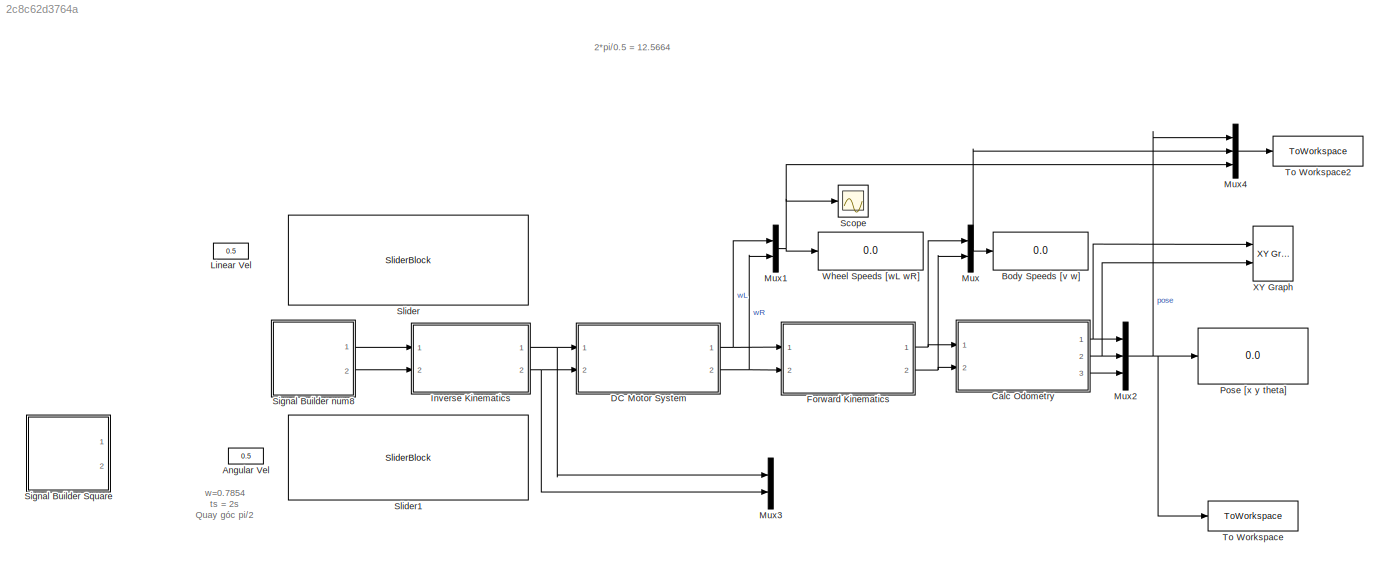
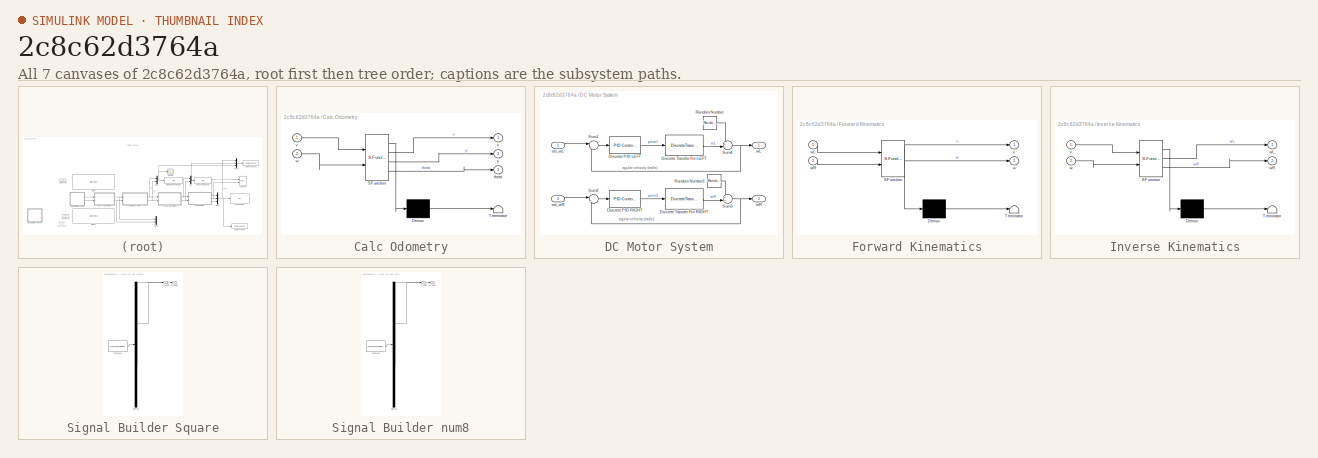
[diagram: thumbnail index - all 7 canvases of the model, root first then tree order]
MODEL slx_2c8c62d3764a
KIND model
CONFIG AbsTol = auto
CONFIG EnableMultiTasking = off
CONFIG FixedStep = 0.005
CONFIG InitFcn = addpath(genpath('<path>'))
CONFIG MaxStep = auto
CONFIG MinStep = auto
CONFIG RelTol = 1e-3
CONFIG SampleTimeConstraint = Unconstrained
CONFIG Solver = FixedStepDiscrete
CONFIG SolverName = FixedStepDiscrete
CONFIG StartTime = 0.0
CONFIG StopTime = 28
BLOCK [Constant] Angular Vel
  Value = 0.5
BLOCK [Display] Body Speeds [v w]
  Decimation = 1
  Ports = [1]
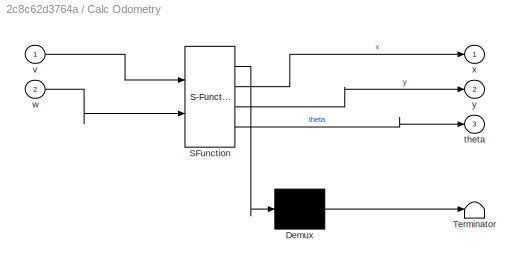
BLOCK [SubSystem] Calc Odometry
  ErrorFcn = Stateflow.Translate.translate
  PermitHierarchicalResolution = ExplicitOnly
  Ports = [2, 3]
  RequestExecContextInheritance = off
  SFBlockType = MATLAB Function
  TreatAsAtomicUnit = on
BLOCK [Demux] Calc Odometry/ Demux 
  Outputs = 1
  Ports = [1, 1]
BLOCK [S-Function] Calc Odometry/ SFunction 
  EnableBusSupport = on
  FunctionName = sf_sfun
  PortCounts = [2 4]
  Ports = [2, 4]
  SFcnIsStateOwnerBlock = off
  SFunctionDeploymentMode = off
  Tag = Stateflow S-Function 3
BLOCK [Terminator] Calc Odometry/ Terminator 
BLOCK [Outport] Calc Odometry/theta
  Port = 3
BLOCK [Inport] Calc Odometry/v
BLOCK [Inport] Calc Odometry/w
  Port = 2
BLOCK [Outport] Calc Odometry/x
BLOCK [Outport] Calc Odometry/y
  Port = 2
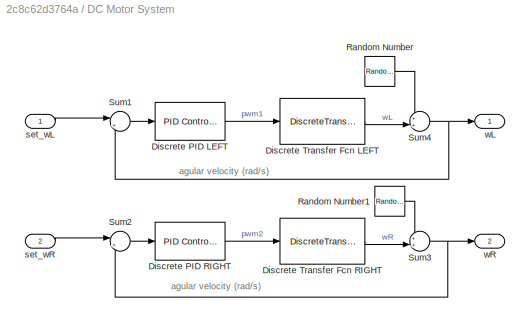
BLOCK [SubSystem] DC Motor System
  Ports = [2, 2]
  RequestExecContextInheritance = off
BLOCK [Reference] DC Motor System/Discrete PID LEFT  REF=simulink/Continuous/PID Controller
  Ports = [1, 1]
  SourceBlock = simulink/Continuous/PID Controller
  SourceProductBaseCode = SL
  SourceType = PID 1dof
BLOCK [Reference] DC Motor System/Discrete PID RIGHT  REF=simulink/Continuous/PID Controller
  Ports = [1, 1]
  SourceBlock = simulink/Continuous/PID Controller
  SourceProductBaseCode = SL
  SourceType = PID 1dof
BLOCK [DiscreteTransferFcn] DC Motor System/Discrete Transfer Fcn LEFT
  Denominator = [1 -0.8037]
  InputPortMap = u0
  Numerator = 0.005571
  Ports = [1, 1]
BLOCK [DiscreteTransferFcn] DC Motor System/Discrete Transfer Fcn RIGHT
  Denominator = [1 -0.7937]
  InputPortMap = u0
  Numerator = [0.007311]
  Ports = [1, 1]
BLOCK [RandomNumber] DC Motor System/Random Number
  Variance = 0.020583
BLOCK [RandomNumber] DC Motor System/Random Number1
  Variance = 0.0847669
BLOCK [Sum] DC Motor System/Sum1
  Inputs = |+-
  Ports = [2, 1]
BLOCK [Sum] DC Motor System/Sum2
  Inputs = |+-
  Ports = [2, 1]
BLOCK [Sum] DC Motor System/Sum3
  Inputs = ++|
  Ports = [2, 1]
BLOCK [Sum] DC Motor System/Sum4
  Inputs = ++|
  Ports = [2, 1]
BLOCK [Inport] DC Motor System/set_wL
BLOCK [Inport] DC Motor System/set_wR
  Port = 2
BLOCK [Outport] DC Motor System/wL
BLOCK [Outport] DC Motor System/wR
  Port = 2
BLOCK [SubSystem] Forward Kinematics
  ErrorFcn = Stateflow.Translate.translate
  PermitHierarchicalResolution = ExplicitOnly
  Ports = [2, 2]
  RequestExecContextInheritance = off
  SFBlockType = MATLAB Function
  TreatAsAtomicUnit = on
BLOCK [Demux] Forward Kinematics/ Demux 
  Outputs = 1
  Ports = [1, 1]
BLOCK [S-Function] Forward Kinematics/ SFunction 
  EnableBusSupport = on
  FunctionName = sf_sfun
  PortCounts = [2 3]
  Ports = [2, 3]
  SFcnIsStateOwnerBlock = off
  SFunctionDeploymentMode = off
  Tag = Stateflow S-Function 1
BLOCK [Terminator] Forward Kinematics/ Terminator 
BLOCK [Outport] Forward Kinematics/v
BLOCK [Outport] Forward Kinematics/w
  Port = 2
BLOCK [Inport] Forward Kinematics/wL
BLOCK [Inport] Forward Kinematics/wR
  Port = 2
BLOCK [SubSystem] Inverse Kinematics
  ErrorFcn = Stateflow.Translate.translate
  PermitHierarchicalResolution = ExplicitOnly
  Ports = [2, 2]
  RequestExecContextInheritance = off
  SFBlockType = MATLAB Function
  TreatAsAtomicUnit = on
BLOCK [Demux] Inverse Kinematics/ Demux 
  Outputs = 1
  Ports = [1, 1]
BLOCK [S-Function] Inverse Kinematics/ SFunction 
  EnableBusSupport = on
  FunctionName = sf_sfun
  PortCounts = [2 3]
  Ports = [2, 3]
  SFcnIsStateOwnerBlock = off
  SFunctionDeploymentMode = off
  Tag = Stateflow S-Function 2
BLOCK [Terminator] Inverse Kinematics/ Terminator 
BLOCK [Inport] Inverse Kinematics/v
BLOCK [Inport] Inverse Kinematics/w
  Port = 2
BLOCK [Outport] Inverse Kinematics/wL
BLOCK [Outport] Inverse Kinematics/wR
  Port = 2
BLOCK [Constant] Linear Vel
  Value = 0.5
BLOCK [Mux] Mux
  DisplayOption = bar
  Inputs = 2
  Ports = [2, 1]
BLOCK [Mux] Mux1
  DisplayOption = bar
  Inputs = 2
  Ports = [2, 1]
BLOCK [Mux] Mux2
  DisplayOption = bar
  Inputs = 3
  Ports = [3, 1]
BLOCK [Mux] Mux3
  DisplayOption = bar
  Inputs = 2
  Ports = [2, 1]
BLOCK [Mux] Mux4
  DisplayOption = bar
  Inputs = 3
  Ports = [3, 1]
BLOCK [Display] Pose [x y theta]
  Decimation = 1
  Ports = [1]
BLOCK [Scope] Scope
  Floating = off
  NumInputPorts = 1
  Ports = [1]
  ScopeSpecificationString = Simulink.scopes.TimeScopeBlockCfg('CurrentConfiguration', extmgr.ConfigurationSet(extmgr.Configuration('Core','General UI',true,'FigureColor',[1 1 1]),extmgr.Configuration('Core','Source UI',true),extmgr.Configuration('Sources','WiredSimulink',true),extmgr.Configuration('Visuals','Time Domain',true,'SerializedDisplays',{struct('MinYLimReal','-1.13442','MaxYLimReal','11.88112','YLabelReal','','MinY...<+1588ch>
BLOCK [SubSystem] Signal Builder Square
  ClipboardFcn = sigbuilder_block('clipboard');
  CloseFcn = sigbuilder_block('close');
  ContinueFcn = sigbuilder_block('continue');
  CopyFcn = sigbuilder_block('copy');
  DeleteFcn = sigbuilder_block('delete');
  LoadFcn = sigbuilder_block('load');
  MaskHideContents = on
  ModelCloseFcn = sigbuilder_block('modelClose');
  NameChangeFcn = sigbuilder_block('namechange');
  OpenFcn = sigbuilder_block('open',[228.75 198 550.5 359.25 ]);
  PauseFcn = sigbuilder_block('pause');
  Ports = [0, 2]
  PreSaveFcn = sigbuilder_block('preSave');
  RequestExecContextInheritance = off
  StartFcn = sigbuilder_block('start');
  StopFcn = sigbuilder_block('stop');
  Tag = STV Subsys
BLOCK [Demux] Signal Builder Square/Demux
  DisplayOption = none
  Outputs = 2
  Ports = [1, 2]
  Tag = STV Demux
BLOCK [FromWorkspace] Signal Builder Square/FromWs
  Tag = STV FromWs
  VariableName = tuvar
BLOCK [Outport] Signal Builder Square/v_robot
  Tag = STV Outport
BLOCK [Outport] Signal Builder Square/w_robot
  Port = 2
  Tag = STV Outport
BLOCK [SubSystem] Signal Builder num8
  ClipboardFcn = sigbuilder_block('clipboard');
  CloseFcn = sigbuilder_block('close');
  ContinueFcn = sigbuilder_block('continue');
  CopyFcn = sigbuilder_block('copy');
  DeleteFcn = sigbuilder_block('delete');
  LoadFcn = sigbuilder_block('load');
  MaskHideContents = on
  ModelCloseFcn = sigbuilder_block('modelClose');
  NameChangeFcn = sigbuilder_block('namechange');
  OpenFcn = sigbuilder_block('open',[196.5 212.25 771.75 357.75 ]);
  PauseFcn = sigbuilder_block('pause');
  Ports = [0, 2]
  PreSaveFcn = sigbuilder_block('preSave');
  RequestExecContextInheritance = off
  StartFcn = sigbuilder_block('start');
  StopFcn = sigbuilder_block('stop');
  Tag = STV Subsys
BLOCK [Demux] Signal Builder num8/Demux
  DisplayOption = none
  Outputs = 2
  Ports = [1, 2]
  Tag = STV Demux
BLOCK [FromWorkspace] Signal Builder num8/FromWs
  Tag = STV FromWs
  VariableName = tuvar
BLOCK [Outport] Signal Builder num8/v_robot
  Tag = STV Outport
BLOCK [Outport] Signal Builder num8/w_robot
  Port = 2
  Tag = STV Outport
BLOCK [SliderBlock] Slider
  ScaleMax = 1
  ScaleMin = -1
  TickInterval = 0.25
BLOCK [SliderBlock] Slider1
  ScaleMax = 1.5
  ScaleMin = -1.5
BLOCK [ToWorkspace] To Workspace
  FixptAsFi = on
  MaxDataPoints = inf
  Ports = [1]
  SampleTime = -1
  SaveFormat = Timeseries
  VariableName = simout
BLOCK [ToWorkspace] To Workspace2
  FixptAsFi = on
  MaxDataPoints = inf
  Ports = [1]
  SampleTime = -1
  SaveFormat = Timeseries
  VariableName = simout2
BLOCK [Display] Wheel Speeds [wL wR]
  Decimation = 1
  Ports = [1]
BLOCK [Reference] XY Graph  REF=simulink/Sinks/XY Graph
  Ports = [2]
  SourceBlock = simulink/Sinks/XY Graph
  SourceProductBaseCode = SL
  SourceType = XY scope.
ANNOTATION (root): 2*pi/0.5 = 12.5664
ANNOTATION (root): w=0.7854 ts = 2s Quay góc pi/2
ANNOTATION DC Motor System: agular velocity (rad/s)
NET Calc Odometry:1 -> Mux2:1, XY Graph:1
NET Calc Odometry:2 -> Mux2:2, XY Graph:2
LINE Calc Odometry:3 -> Mux2:3
LINE DC Motor System/Discrete PID LEFT:1 -> DC Motor System/Discrete Transfer Fcn LEFT:1
LINE DC Motor System/Discrete PID RIGHT:1 -> DC Motor System/Discrete Transfer Fcn RIGHT:1
LINE DC Motor System/Discrete Transfer Fcn LEFT:1 -> DC Motor System/Sum4:2
LINE DC Motor System/Discrete Transfer Fcn RIGHT:1 -> DC Motor System/Sum3:2
LINE DC Motor System/Random Number1:1 -> DC Motor System/Sum3:1
LINE DC Motor System/Random Number:1 -> DC Motor System/Sum4:1
LINE DC Motor System/Sum1:1 -> DC Motor System/Discrete PID LEFT:1
LINE DC Motor System/Sum2:1 -> DC Motor System/Discrete PID RIGHT:1
NET DC Motor System/Sum3:1 -> DC Motor System/Sum2:2, DC Motor System/wR:1
NET DC Motor System/Sum4:1 -> DC Motor System/Sum1:2, DC Motor System/wL:1
LINE DC Motor System/set_wL:1 -> DC Motor System/Sum1:1
LINE DC Motor System/set_wR:1 -> DC Motor System/Sum2:1
NET DC Motor System:1 -> Forward Kinematics:1, Mux1:1
NET DC Motor System:2 -> Forward Kinematics:2, Mux1:2
NET Forward Kinematics:1 -> Calc Odometry:1, Mux:1
NET Forward Kinematics:2 -> Calc Odometry:2, Mux:2
NET Inverse Kinematics:1 -> DC Motor System:1, Mux3:1
NET Inverse Kinematics:2 -> DC Motor System:2, Mux3:2
NET Mux1:1 -> Mux4:3, Scope:1, Wheel Speeds [wL wR]:1
NET Mux2:1 -> Mux4:1, Pose [x y theta]:1, To Workspace:1
LINE Mux4:1 -> To Workspace2:1
NET Mux:1 -> Body Speeds [v w]:1, Mux4:2
LINE Signal Builder num8:1 -> Inverse Kinematics:1
LINE Signal Builder num8:2 -> Inverse Kinematics:2
note: NET lines group one-source signal fan-out (src -> all destinations, sorted); 1:1 wires keep LINE
CHART Forward Kinematics states=1 transitions=1
  STATE_LABEL 'eML_blk_kernel()'
  STATE_LABEL 'SCRIPT:\nfunction [v,w] = forwardKinematics(wL,wR)\n    % Calculates linear and angular velocity from wheel speeds\n    wheelRadius = 0.0625;\n    wheelBase = 0.37;\n    v = 0.5*wheelRadius*(wL+wR);\n    w = (wR-wL)*wheelRadius/wheelBase;\nend'
CHART Inverse Kinematics states=1 transitions=1
  STATE_LABEL 'eML_blk_kernel()'
  STATE_LABEL 'SCRIPT:\n%hiennd, 04/08/2020\nfunction [wL,wR] = inverseKinematics(v,w)   \n    wheelRadius = 0.0625;\n    wheelBase = 0.37;\n    % Calculates wheel speeds from linear and angular velocity          \n    wL = (v - w*wheelBase/2)/wheelRadius;\n    wR = (v + w*wheelBase/2)/wheelRadius;\nend'
CHART Calc Odometry states=1 transitions=1
  STATE_LABEL 'eML_blk_kernel()'
  STATE_LABEL 'SCRIPT:\nfunction [x,y,theta] = calcOdometry(v,w)\n    persistent pose\n    if isempty(pose)\n        pose = zeros(3,1);    % Pose matrix\n    end\n    sampleTime = 0.005; %5ms\n    velB = [v;0;w]; % Body velocities [vx;vy;w]\n    % Convert from body to world\n    %theta = pose(3); == ok\n    %new code\n    theta = pose(3) + 0.5*w*sampleTime; %,OK, too !!!\n    vel = [cos(theta) -sin(theta) 0; sin(theta) cos(...<+544ch>'
CHART  states=0 transitions=0
CHART  states=0 transitions=0
CHART  states=0 transitions=0
note: 1 file-system path scrubbed to <path> (not preserved elsewhere — flat text is the only slx artifact)
